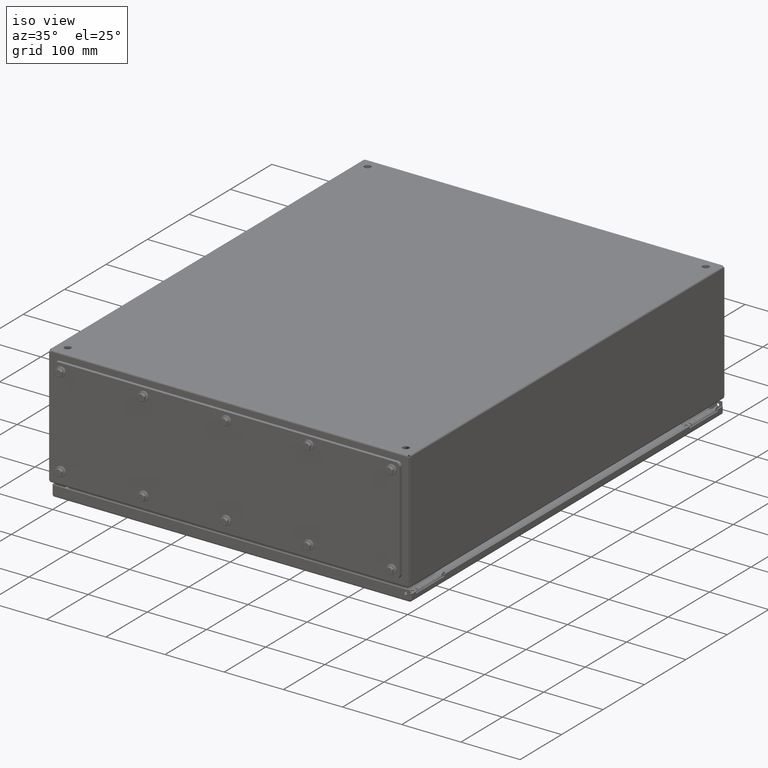
[diagram: clean part render]
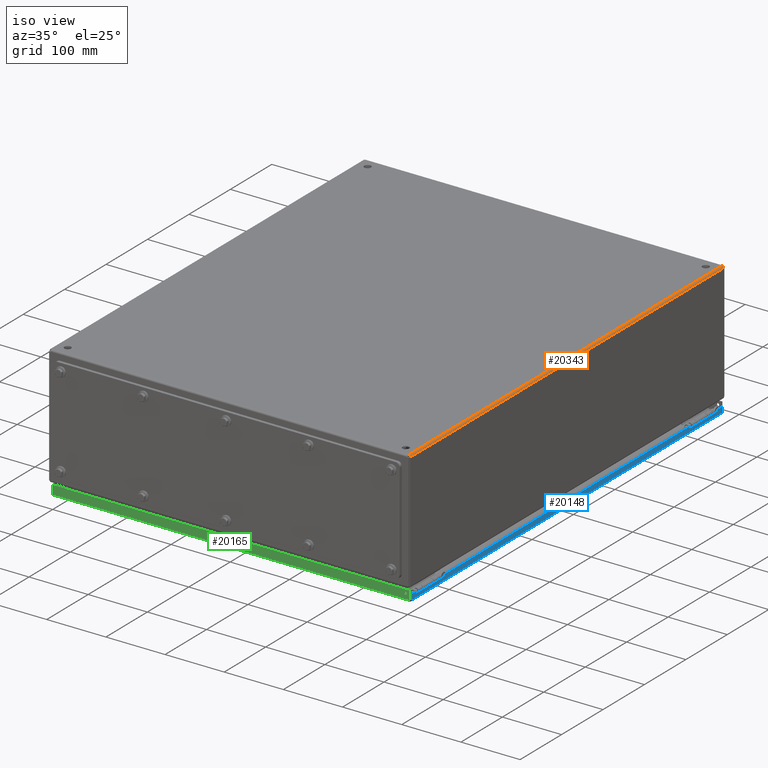
[diagram: same view with three faces highlighted in distinct colors, each labeled with its STEP entity id]
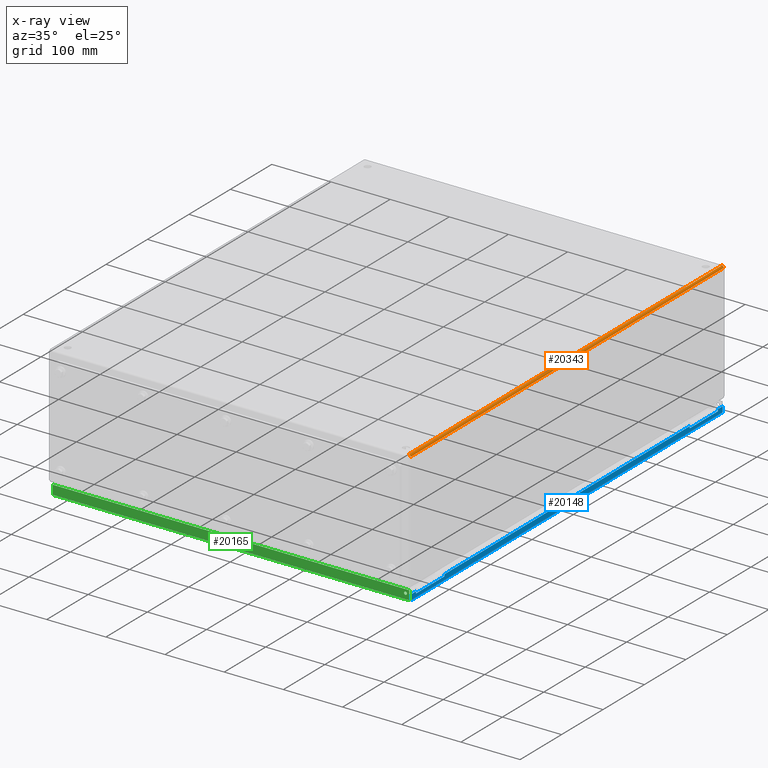
[diagram: x-ray of the same camera — body ghosted, the three highlighted faces saturated]
A machine part, iso view with three faces highlighted in distinct colors.
The next image is the same camera in x-ray (body ghosted, the three faces saturated) — at least one of them is partly hidden behind the body in this view.
Their STEP definitions:

[orange] entity #20343 — the highlighted cylindrical surface (edge-blend (fillet) strip) has radius 3.0702 mm, axis along (-0, 1, -0).
#2027=FACE_OUTER_BOUND('',#3235,.T.);
#3235=EDGE_LOOP('',(#14107,#14108,#14109,#14110));
#4648=LINE('',#31710,#6140);
#4684=LINE('',#31798,#6176);
#6140=VECTOR('',#24809,0.393700787401575);
#6176=VECTOR('',#24905,0.393700787401575);
#7351=CIRCLE('',#22056,0.120874999999999);
#7352=CIRCLE('',#22057,0.120874999999999);
#8562=VERTEX_POINT('',#31707);
#8563=VERTEX_POINT('',#31709);
#8579=VERTEX_POINT('',#31755);
#8585=VERTEX_POINT('',#31796);
#10623=EDGE_CURVE('',#8562,#8563,#4648,.T.);
#10667=EDGE_CURVE('',#8585,#8562,#7351,.T.);
#10668=EDGE_CURVE('',#8579,#8585,#4684,.T.);
#10669=EDGE_CURVE('',#8563,#8579,#7352,.T.);
#14107=ORIENTED_EDGE('',*,*,#10623,.F.);
#14108=ORIENTED_EDGE('',*,*,#10667,.F.);
#14109=ORIENTED_EDGE('',*,*,#10668,.F.);
#14110=ORIENTED_EDGE('',*,*,#10669,.F.);
#19081=CYLINDRICAL_SURFACE('',#22055,0.120874999999999);
#20343=ADVANCED_FACE('',(#2027),#19081,.T.);
#22055=AXIS2_PLACEMENT_3D('',#31795,#24901,#24902);
#22056=AXIS2_PLACEMENT_3D('',#31797,#24903,#24904);
#22057=AXIS2_PLACEMENT_3D('',#31799,#24906,#24907);
#24809=DIRECTION('',(3.06161699786838E-16,-1.,-1.8814971953844E-49));
#24901=DIRECTION('center_axis',(-3.06161699786838E-16,1.,0.));
#24902=DIRECTION('ref_axis',(-1.,0.,9.67305845946897E-14));
#24903=DIRECTION('center_axis',(-3.06161699786838E-16,1.,0.));
#24904=DIRECTION('ref_axis',(-9.69113894257078E-14,0.,-1.));
#24905=DIRECTION('',(-3.05514945365224E-16,1.,0.));
#24906=DIRECTION('center_axis',(3.06161699786838E-16,-1.,0.));
#24907=DIRECTION('ref_axis',(-1.,0.,0.));
#31707=CARTESIAN_POINT('',(-3.0279957262564E-15,29.879125,0.120875000000007));
#31709=CARTESIAN_POINT('',(6.08284067642528E-15,0.120875000000005,0.120875));
#31710=CARTESIAN_POINT('',(1.52469062709078E-15,15.,0.120875));
#31755=CARTESIAN_POINT('',(0.120875000000005,0.120875000000006,-1.09273919746571E-17));
#31795=CARTESIAN_POINT('Origin',(0.120874999999996,29.879125,0.120875));
#31796=CARTESIAN_POINT('',(0.120874999999994,29.879125,-3.27821759239712E-17));
#31797=CARTESIAN_POINT('Origin',(0.120874999999996,29.879125,0.120875));
#31798=CARTESIAN_POINT('',(0.120875000000003,7.5604375,0.));
#31799=CARTESIAN_POINT('Origin',(0.120875000000005,0.120875000000006,0.120875));

[blue] entity #20148 — the highlighted planar face has unit normal (-1, -0, 0).
#1336=PLANE('',#21819);
#1832=FACE_OUTER_BOUND('',#3002,.T.);
#3002=EDGE_LOOP('',(#13207,#13208,#13209,#13210,#13211,#13212,#13213,#13214,
#13215,#13216,#13217,#13218));
#4337=LINE('',#29931,#5829);
#4340=LINE('',#29937,#5832);
#4343=LINE('',#29943,#5835);
#4346=LINE('',#29949,#5838);
#4349=LINE('',#29955,#5841);
#4352=LINE('',#29961,#5844);
#4355=LINE('',#29967,#5847);
#4358=LINE('',#29973,#5850);
#4361=LINE('',#29979,#5853);
#4363=LINE('',#29983,#5855);
#4364=LINE('',#29985,#5856);
#4365=LINE('',#29986,#5857);
#5829=VECTOR('',#24066,0.393700787401575);
#5832=VECTOR('',#24071,0.393700787401575);
#5835=VECTOR('',#24076,0.393700787401575);
#5838=VECTOR('',#24081,0.393700787401575);
#5841=VECTOR('',#24086,0.393700787401575);
#5844=VECTOR('',#24091,0.393700787401575);
#5847=VECTOR('',#24096,0.393700787401575);
#5850=VECTOR('',#24101,0.393700787401575);
#5853=VECTOR('',#24106,0.393700787401575);
#5855=VECTOR('',#24110,0.393700787401575);
#5856=VECTOR('',#24111,0.393700787401575);
#5857=VECTOR('',#24112,0.393700787401575);
#8317=VERTEX_POINT('',#29928);
#8318=VERTEX_POINT('',#29930);
#8320=VERTEX_POINT('',#29936);
#8322=VERTEX_POINT('',#29942);
#8324=VERTEX_POINT('',#29948);
#8326=VERTEX_POINT('',#29954);
#8328=VERTEX_POINT('',#29960);
#8330=VERTEX_POINT('',#29966);
#8332=VERTEX_POINT('',#29972);
#8334=VERTEX_POINT('',#29978);
#8335=VERTEX_POINT('',#29982);
#8336=VERTEX_POINT('',#29984);
#10200=EDGE_CURVE('',#8318,#8317,#4337,.T.);
#10203=EDGE_CURVE('',#8320,#8318,#4340,.T.);
#10206=EDGE_CURVE('',#8322,#8320,#4343,.T.);
#10209=EDGE_CURVE('',#8324,#8322,#4346,.T.);
#10212=EDGE_CURVE('',#8326,#8324,#4349,.T.);
#10215=EDGE_CURVE('',#8328,#8326,#4352,.T.);
#10218=EDGE_CURVE('',#8330,#8328,#4355,.T.);
#10221=EDGE_CURVE('',#8332,#8330,#4358,.T.);
#10224=EDGE_CURVE('',#8334,#8332,#4361,.T.);
#10226=EDGE_CURVE('',#8335,#8317,#4363,.T.);
#10227=EDGE_CURVE('',#8335,#8336,#4364,.T.);
#10228=EDGE_CURVE('',#8334,#8336,#4365,.T.);
#13207=ORIENTED_EDGE('',*,*,#10224,.T.);
#13208=ORIENTED_EDGE('',*,*,#10221,.T.);
#13209=ORIENTED_EDGE('',*,*,#10218,.T.);
#13210=ORIENTED_EDGE('',*,*,#10215,.T.);
#13211=ORIENTED_EDGE('',*,*,#10212,.T.);
#13212=ORIENTED_EDGE('',*,*,#10209,.T.);
#13213=ORIENTED_EDGE('',*,*,#10206,.T.);
#13214=ORIENTED_EDGE('',*,*,#10203,.T.);
#13215=ORIENTED_EDGE('',*,*,#10200,.T.);
#13216=ORIENTED_EDGE('',*,*,#10226,.F.);
#13217=ORIENTED_EDGE('',*,*,#10227,.T.);
#13218=ORIENTED_EDGE('',*,*,#10228,.F.);
#20148=ADVANCED_FACE('',(#1832),#1336,.F.);
#21819=AXIS2_PLACEMENT_3D('',#29981,#24108,#24109);
#24066=DIRECTION('',(1.82528317929709E-16,-1.,-2.9983167574054E-16));
#24071=DIRECTION('',(-5.70130213441329E-14,1.89142767218097E-16,1.));
#24076=DIRECTION('',(1.82528317929691E-16,-1.,1.02051985970018E-17));
#24081=DIRECTION('',(5.70130213441329E-14,-1.89142767218097E-16,-1.));
#24086=DIRECTION('',(1.82528317929704E-16,-1.,-2.12103266168408E-16));
#24091=DIRECTION('',(-5.70130213441329E-14,1.89142767218097E-16,1.));
#24096=DIRECTION('',(1.82528317929688E-16,-1.,5.90063536754847E-17));
#24101=DIRECTION('',(5.70130213441329E-14,-1.89142767218097E-16,-1.));
#24106=DIRECTION('',(1.82528317929714E-16,-1.,-3.97626564332273E-16));
#24108=DIRECTION('center_axis',(-1.,-1.82528317929691E-16,-5.70130213441329E-14));
#24109=DIRECTION('ref_axis',(-5.70130213441329E-14,-1.88061334152092E-16,
1.));
#24110=DIRECTION('',(-5.14531160026499E-14,-9.68819799224555E-30,1.));
#24111=DIRECTION('',(-1.82528317929691E-16,1.,2.8469092553515E-31));
#24112=DIRECTION('',(5.14531160026499E-14,9.68819799224555E-30,-1.));
#29928=CARTESIAN_POINT('',(23.875,0.0850485434560419,0.48000000000001));
#29930=CARTESIAN_POINT('',(23.875,0.532000000000006,0.48000000000001));
#29931=CARTESIAN_POINT('',(23.875,7.48002427172802,0.480000000000012));
#29936=CARTESIAN_POINT('',(23.875,0.532000000000006,0.35500000000001));
#29937=CARTESIAN_POINT('',(23.875,0.532000000000007,0.424761516616194));
#29942=CARTESIAN_POINT('',(23.875,3.21900000000001,0.355000000000009));
#29943=CARTESIAN_POINT('',(23.875,7.7035,0.355000000000009));
#29948=CARTESIAN_POINT('',(23.875,3.21900000000001,0.48000000000001));
#29949=CARTESIAN_POINT('',(23.875,3.21900000000001,0.362261516616194));
#29954=CARTESIAN_POINT('',(23.875,26.531,0.480000000000014));
#29955=CARTESIAN_POINT('',(23.875,9.047,0.480000000000011));
#29960=CARTESIAN_POINT('',(23.875,26.531,0.355000000000011));
#29961=CARTESIAN_POINT('',(23.875,26.531,0.424761516616194));
#29966=CARTESIAN_POINT('',(23.875,29.218,0.35500000000001));
#29967=CARTESIAN_POINT('',(23.875,20.703,0.355000000000011));
#29972=CARTESIAN_POINT('',(23.875,29.218,0.480000000000015));
#29973=CARTESIAN_POINT('',(23.875,29.218,0.362261516616192));
#29978=CARTESIAN_POINT('',(23.875,29.664951456544,0.480000000000015));
#29979=CARTESIAN_POINT('',(23.875,22.0465,0.480000000000012));
#29981=CARTESIAN_POINT('Origin',(23.875,14.875,0.369523033232375));
#29982=CARTESIAN_POINT('',(23.875,0.0850485434560453,0.120875000000012));
#29983=CARTESIAN_POINT('',(23.875,0.0850485434560468,0.120875000000012));
#29984=CARTESIAN_POINT('',(23.875,29.664951456544,0.120875000000006));
#29985=CARTESIAN_POINT('',(23.875,14.875,0.120875000000006));
#29986=CARTESIAN_POINT('',(23.875,29.664951456544,0.120875000000006));

[green] entity #20165 — the highlighted planar face has unit normal (-0, 1, -0).
#729=FACE_BOUND('',#3021,.T.);
#1344=PLANE('',#21836);
#1849=FACE_OUTER_BOUND('',#3020,.T.);
#3020=EDGE_LOOP('',(#13292,#13293,#13294,#13295));
#3021=EDGE_LOOP('',(#13296));
#4377=LINE('',#30090,#5869);
#4383=LINE('',#30118,#5875);
#4388=LINE('',#30180,#5880);
#4390=LINE('',#30183,#5882);
#5869=VECTOR('',#24148,0.393700787401575);
#5875=VECTOR('',#24158,0.393700787401575);
#5880=VECTOR('',#24165,0.393700787401575);
#5882=VECTOR('',#24169,0.393700787401575);
#7306=CIRCLE('',#21827,0.094);
#8342=VERTEX_POINT('',#30004);
#8347=VERTEX_POINT('',#30088);
#8348=VERTEX_POINT('',#30089);
#8354=VERTEX_POINT('',#30117);
#8356=VERTEX_POINT('',#30179);
#10238=EDGE_CURVE('',#8342,#8342,#7306,.T.);
#10248=EDGE_CURVE('',#8347,#8348,#4377,.T.);
#10256=EDGE_CURVE('',#8354,#8348,#4383,.T.);
#10263=EDGE_CURVE('',#8347,#8356,#4388,.T.);
#10265=EDGE_CURVE('',#8356,#8354,#4390,.T.);
#13292=ORIENTED_EDGE('',*,*,#10248,.T.);
#13293=ORIENTED_EDGE('',*,*,#10256,.F.);
#13294=ORIENTED_EDGE('',*,*,#10265,.F.);
#13295=ORIENTED_EDGE('',*,*,#10263,.F.);
#13296=ORIENTED_EDGE('',*,*,#10238,.T.);
#20165=ADVANCED_FACE('',(#1849,#729),#1344,.F.);
#21827=AXIS2_PLACEMENT_3D('',#30006,#24133,#24134);
#21836=AXIS2_PLACEMENT_3D('',#30184,#24170,#24171);
#24133=DIRECTION('center_axis',(-1.97339498061666E-20,1.,7.7785810658987E-17));
#24134=DIRECTION('ref_axis',(-1.,-6.26868492249573E-16,-2.36019726026188E-16));
#24148=DIRECTION('',(1.,1.97339498061666E-20,1.20835592323282E-36));
#24158=DIRECTION('',(0.,6.12323399573677E-17,-1.));
#24165=DIRECTION('',(0.,-6.12323399573677E-17,1.));
#24169=DIRECTION('',(1.,-2.48394439230444E-33,4.05658904107512E-17));
#24170=DIRECTION('center_axis',(-1.97339498061666E-20,1.,7.7785810658987E-17));
#24171=DIRECTION('ref_axis',(1.,1.97339498061666E-20,1.20835592323282E-36));
#30004=CARTESIAN_POINT('',(23.633951456544,1.12485750203203E-14,0.480000000000122));
#30006=CARTESIAN_POINT('Origin',(23.539951456544,1.11896493820488E-14,0.480000000000122));
#30088=CARTESIAN_POINT('',(0.0850485434560479,7.12516803355547E-15,0.120874999999999));
#30089=CARTESIAN_POINT('',(23.7899514565439,7.12516803355547E-15,0.120875));
#30090=CARTESIAN_POINT('',(11.9375,7.1306317295428E-15,0.120875));
#30117=CARTESIAN_POINT('',(23.789951456544,7.07694249250428E-15,0.73));
#30118=CARTESIAN_POINT('',(23.789951456544,7.12516803355547E-15,0.120875));
#30179=CARTESIAN_POINT('',(0.0850485434560459,7.07694249250428E-15,0.729999999999999));
#30180=CARTESIAN_POINT('',(0.0850485434560459,7.12516803355547E-15,0.120874999999999));
#30183=CARTESIAN_POINT('',(0.0850485434560459,7.08786988447894E-15,0.729999999999999));
#30184=CARTESIAN_POINT('Origin',(11.9375,7.10993726065058E-15,0.369612397843876));